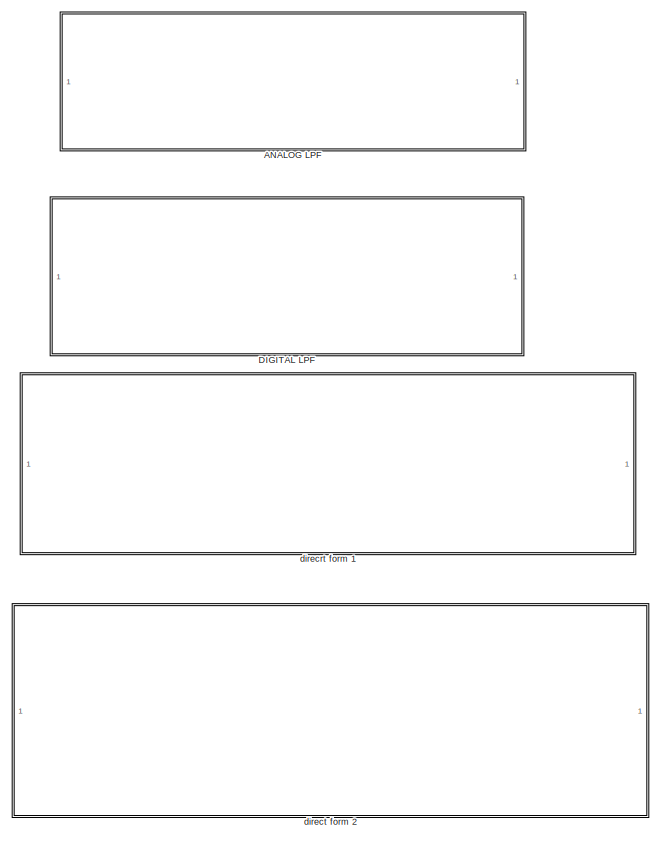
[diagram: root canvas - part 1/6, top center region]
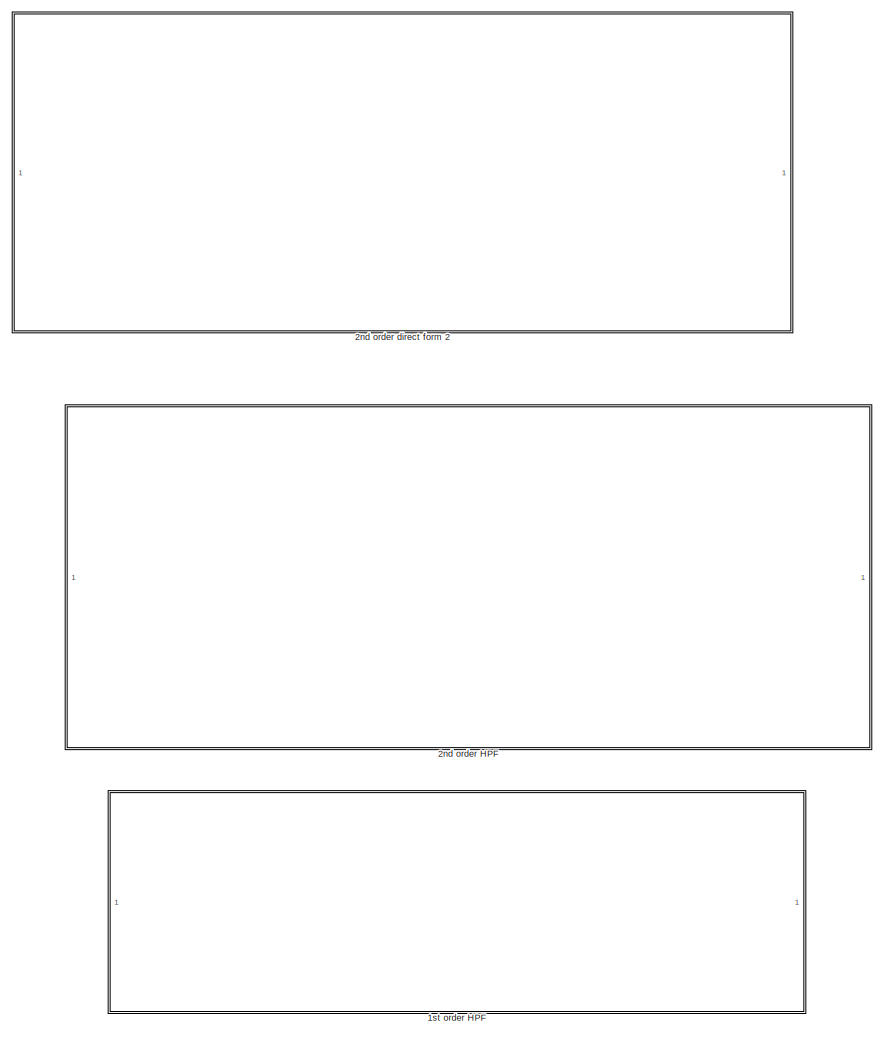
[diagram: root canvas - part 2/6, top center region]
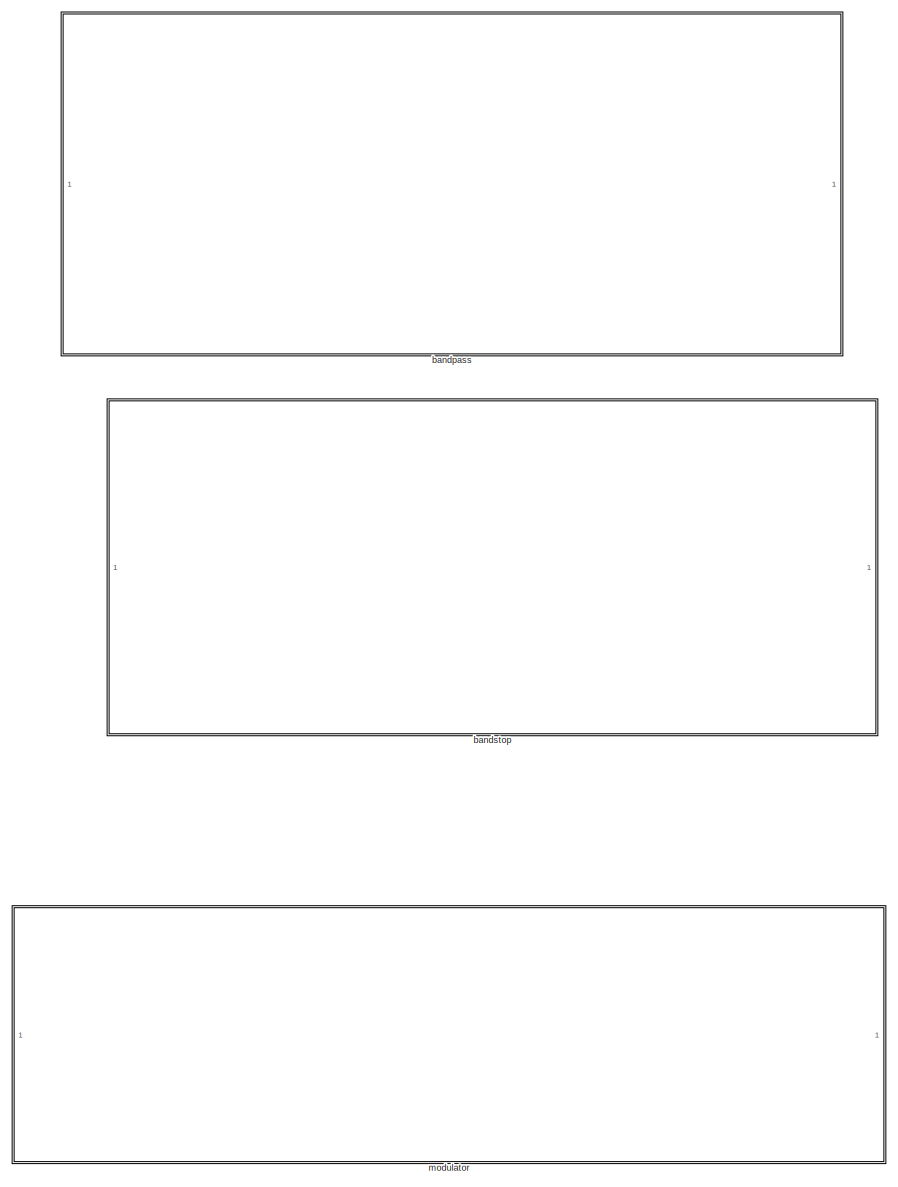
[diagram: root canvas - part 3/6, central region]
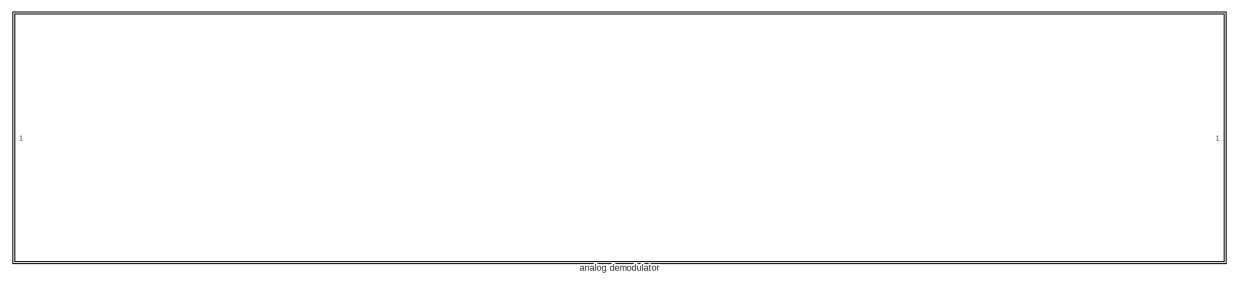
[diagram: root canvas - part 4/6, bottom center region]
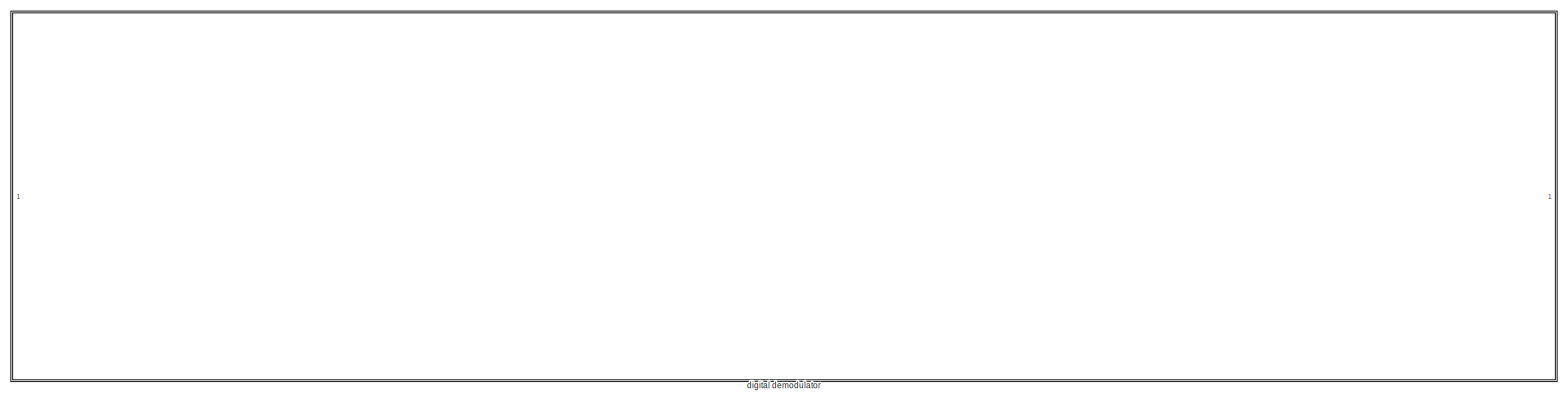
[diagram: root canvas - part 5/6, bottom center region]
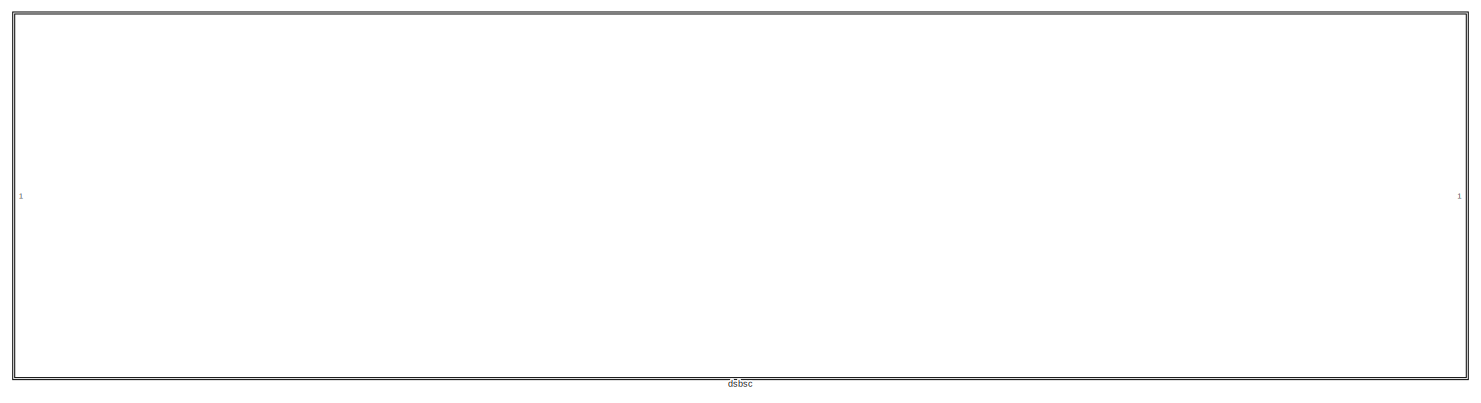
[diagram: root canvas - part 6/6, bottom left region]
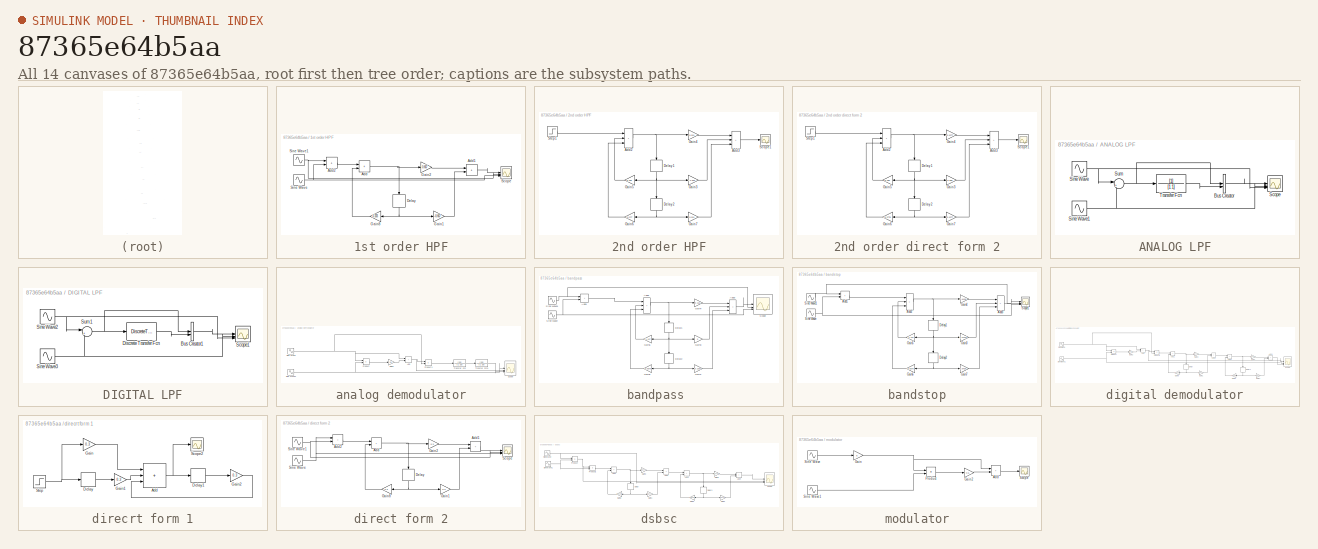
[diagram: thumbnail index - all 14 canvases of the model, root first then tree order]
MODEL slx_87365e64b5aa
KIND model
CONFIG AbsTol = auto
CONFIG EnableMultiTasking = off
CONFIG FixedStep = auto
CONFIG MaxStep = auto
CONFIG MinStep = auto
CONFIG RelTol = 1e-3
CONFIG SampleTimeConstraint = Unconstrained
CONFIG SolverName = VariableStepAuto
CONFIG StartTime = 0.0
CONFIG StopTime = 10.0
BLOCK [SubSystem] 1st order HPF
BLOCK [Sum] 1st order HPF/Add
  IconShape = rectangular
BLOCK [Sum] 1st order HPF/Add1
  IconShape = rectangular
BLOCK [Sum] 1st order HPF/Add2
  IconShape = rectangular
BLOCK [Delay] 1st order HPF/Delay
  DelayLength = 1
  InitialCondition = 0
  InputPortMap = u0
  NameLocation = left
BLOCK [Gain] 1st order HPF/Gain1
  Gain = -0.667
BLOCK [Gain] 1st order HPF/Gain2
  Gain = 0.667
BLOCK [Gain] 1st order HPF/Gain8
  Gain = 0.333
  NameLocation = top
BLOCK [Scope] 1st order HPF/Scope
  Floating = off
  NumInputPorts = 3
  ScopeSpecificationString = Simulink.scopes.TimeScopeBlockCfg('CurrentConfiguration', extmgr.ConfigurationSet(extmgr.Configuration('Core','General UI',true),extmgr.Configuration('Core','Source UI',true),extmgr.Configuration('Sources','WiredSimulink',true,'DataLoggingVariableName','ScopeData5'),extmgr.Configuration('Visuals','Time Domain',true,'SerializedDisplays',{struct('MinYLimReal','-1.07939','MaxYLimReal','1.33461','YLab...<+3016ch>
BLOCK [Sin] 1st order HPF/Sine Wave
  Frequency = 50
  SampleTime = 0
BLOCK [Sin] 1st order HPF/Sine Wave1
  Frequency = 5
  SampleTime = 0
BLOCK [SubSystem] 2nd order HPF
BLOCK [Sum] 2nd order HPF/Add2
  IconShape = rectangular
  Inputs = +++
BLOCK [Sum] 2nd order HPF/Add3
  IconShape = rectangular
  Inputs = +++
BLOCK [Delay] 2nd order HPF/Delay1
  DelayLength = 1
  InitialCondition = 0
  InputPortMap = u0
  NameLocation = left
BLOCK [Delay] 2nd order HPF/Delay2
  DelayLength = 1
  InitialCondition = 0
  InputPortMap = u0
  NameLocation = left
BLOCK [Gain] 2nd order HPF/Gain3
  Gain = -1.022
BLOCK [Gain] 2nd order HPF/Gain4
  Gain = 0.511
BLOCK [Gain] 2nd order HPF/Gain5
  Gain = 0.766
  NameLocation = top
BLOCK [Gain] 2nd order HPF/Gain6
  Gain = -0.277
  NameLocation = top
BLOCK [Gain] 2nd order HPF/Gain7
  Gain = 0.511
BLOCK [Scope] 2nd order HPF/Scope1
  Floating = off
  NumInputPorts = 1
  ScopeSpecificationString = Simulink.scopes.TimeScopeBlockCfg('CurrentConfiguration', extmgr.ConfigurationSet(extmgr.Configuration('Core','General UI',true),extmgr.Configuration('Core','Source UI',true),extmgr.Configuration('Sources','WiredSimulink',true,'DataLoggingVariableName','ScopeData4'),extmgr.Configuration('Visuals','Time Domain',true,'SerializedDisplays',{struct('MinYLimReal','-0.32616','MaxYLimReal','0.60402','YLab...<+1452ch>
BLOCK [Step] 2nd order HPF/Step1
  SampleTime = 0
BLOCK [SubSystem] 2nd order direct form 2
BLOCK [Sum] 2nd order direct form 2/Add2
  IconShape = rectangular
  Inputs = +++
BLOCK [Sum] 2nd order direct form 2/Add3
  IconShape = rectangular
  Inputs = +++
BLOCK [Delay] 2nd order direct form 2/Delay1
  DelayLength = 1
  InitialCondition = 0
  InputPortMap = u0
  NameLocation = left
BLOCK [Delay] 2nd order direct form 2/Delay2
  DelayLength = 1
  InitialCondition = 0
  InputPortMap = u0
  NameLocation = left
BLOCK [Gain] 2nd order direct form 2/Gain3
  Gain = 0.255
BLOCK [Gain] 2nd order direct form 2/Gain4
  Gain = 0.1277
BLOCK [Gain] 2nd order direct form 2/Gain5
  Gain = 0.766
  NameLocation = top
BLOCK [Gain] 2nd order direct form 2/Gain6
  Gain = -0.2775
  NameLocation = top
BLOCK [Gain] 2nd order direct form 2/Gain7
  Gain = 0.1277
BLOCK [Scope] 2nd order direct form 2/Scope1
  Floating = off
  NumInputPorts = 1
  ScopeSpecificationString = Simulink.scopes.TimeScopeBlockCfg('CurrentConfiguration', extmgr.ConfigurationSet(extmgr.Configuration('Core','General UI',true),extmgr.Configuration('Core','Source UI',true),extmgr.Configuration('Sources','WiredSimulink',true,'DataLoggingVariableName','ScopeData3'),extmgr.Configuration('Visuals','Time Domain',true,'SerializedDisplays',{struct('MinYLimReal','-0.13249','MaxYLimReal','1.19243','YLab...<+1452ch>
BLOCK [Step] 2nd order direct form 2/Step1
  SampleTime = 0
BLOCK [SubSystem] ANALOG LPF
BLOCK [BusCreator] ANALOG LPF/Bus Creator
  DisplayOption = bar
  InheritFromInputs = on
  Inputs = 2
BLOCK [Scope] ANALOG LPF/Scope
  Floating = off
  NumInputPorts = 3
  ScopeSpecificationString = Simulink.scopes.TimeScopeBlockCfg('CurrentConfiguration', extmgr.ConfigurationSet(extmgr.Configuration('Core','General UI',true),extmgr.Configuration('Core','Source UI',true),extmgr.Configuration('Sources','WiredSimulink',true),extmgr.Configuration('Visuals','Time Domain',true,'SerializedDisplays',{struct('MinYLimReal','-2.48364','MaxYLimReal','2.48349','YLabelReal','','MinYLimMag','0.00000','MaxY...<+2987ch>
BLOCK [Sin] ANALOG LPF/Sine Wave
  SampleTime = 0
BLOCK [Sin] ANALOG LPF/Sine Wave1
  Frequency = 10
  SampleTime = 0
BLOCK [Sum] ANALOG LPF/Sum
  Inputs = |++
BLOCK [TransferFcn] ANALOG LPF/Transfer Fcn
  Denominator = [1 1]
BLOCK [SubSystem] DIGITAL LPF
BLOCK [BusCreator] DIGITAL LPF/Bus Creator1
  DisplayOption = bar
  InheritFromInputs = on
  Inputs = 2
BLOCK [DiscreteTransferFcn] DIGITAL LPF/Discrete Transfer Fcn
  Denominator = [1 -0.9078]
  InputPortMap = u0
  Numerator = [0.0476 0.0476]
BLOCK [Scope] DIGITAL LPF/Scope1
  Floating = off
  NumInputPorts = 3
  ScopeSpecificationString = Simulink.scopes.TimeScopeBlockCfg('CurrentConfiguration', extmgr.ConfigurationSet(extmgr.Configuration('Core','General UI',true),extmgr.Configuration('Core','Source UI',true),extmgr.Configuration('Sources','WiredSimulink',true,'DataLoggingVariableName','ScopeData1'),extmgr.Configuration('Visuals','Time Domain',true,'SerializedDisplays',{struct('MinYLimReal','-2.25862','MaxYLimReal','2.44658','YLab...<+3040ch>
BLOCK [Sin] DIGITAL LPF/Sine Wave2
  SampleTime = 0
BLOCK [Sin] DIGITAL LPF/Sine Wave3
  Frequency = 10
  SampleTime = 0
BLOCK [Sum] DIGITAL LPF/Sum1
  Inputs = |++
BLOCK [SubSystem] analog demodulator
BLOCK [Sum] analog demodulator/Add
  IconShape = rectangular
BLOCK [Gain] analog demodulator/Gain2
  Gain = 0.5
BLOCK [Product] analog demodulator/Product
BLOCK [Product] analog demodulator/Product1
BLOCK [Scope] analog demodulator/Scope
  Floating = off
  NumInputPorts = 3
  ScopeSpecificationString = Simulink.scopes.TimeScopeBlockCfg('CurrentConfiguration', extmgr.ConfigurationSet(extmgr.Configuration('Core','General UI',true),extmgr.Configuration('Core','Source UI',true),extmgr.Configuration('Sources','WiredSimulink',true,'DataLoggingVariableName','ScopeData1'),extmgr.Configuration('Visuals','Time Domain',true,'SerializedDisplays',{struct('MinYLimReal','-1.24999','MaxYLimReal','1.25','YLabelR...<+3013ch>
BLOCK [Sin] analog demodulator/Sine Wave
  Amplitude = 5
  Frequency = 100
  SampleTime = 0
BLOCK [Sin] analog demodulator/Sine Wave1
  SampleTime = 0
BLOCK [TransferFcn] analog demodulator/Transfer Fcn
  Denominator = [1 20]
  Numerator = [20]
BLOCK [TransferFcn] analog demodulator/Transfer Fcn1
  Denominator = [1 20]
  Numerator = [20]
BLOCK [SubSystem] bandpass 
BLOCK [Sum] bandpass /Add1
  IconShape = rectangular
BLOCK [Sum] bandpass /Add2
  IconShape = rectangular
  Inputs = +++
BLOCK [Sum] bandpass /Add3
  IconShape = rectangular
  Inputs = +++
BLOCK [Delay] bandpass /Delay1
  DelayLength = 1
  InitialCondition = 0
  InputPortMap = u0
  NameLocation = left
BLOCK [Delay] bandpass /Delay2
  DelayLength = 1
  InitialCondition = 0
  InputPortMap = u0
  NameLocation = left
BLOCK [Gain] bandpass /Gain3
  Gain = 0
BLOCK [Gain] bandpass /Gain4
  Gain = 0.156
BLOCK [Gain] bandpass /Gain5
  Gain = -1.437
  NameLocation = top
BLOCK [Gain] bandpass /Gain6
  Gain = -0.6875
  NameLocation = top
BLOCK [Gain] bandpass /Gain7
  Gain = -0.1562
BLOCK [Scope] bandpass /Scope
  Floating = off
  NumInputPorts = 3
  ScopeSpecificationString = Simulink.scopes.TimeScopeBlockCfg('CurrentConfiguration', extmgr.ConfigurationSet(extmgr.Configuration('Core','General UI',true),extmgr.Configuration('Core','Source UI',true),extmgr.Configuration('Sources','WiredSimulink',true,'DataLoggingVariableName','ScopeData1'),extmgr.Configuration('Visuals','Time Domain',true,'SerializedDisplays',{struct('MinYLimReal','-0.1839','MaxYLimReal','0.29717','YLabe...<+2982ch>
BLOCK [Sin] bandpass /Sine Wave
  Frequency = 50
  SampleTime = 0
BLOCK [Sin] bandpass /Sine Wave1
  Frequency = 5
  SampleTime = 0
BLOCK [SubSystem] bandstop
BLOCK [Sum] bandstop/Add1
  IconShape = rectangular
BLOCK [Sum] bandstop/Add2
  IconShape = rectangular
  Inputs = +++
BLOCK [Sum] bandstop/Add3
  IconShape = rectangular
  Inputs = +++
BLOCK [Delay] bandstop/Delay1
  DelayLength = 1
  InitialCondition = 0
  InputPortMap = u0
  NameLocation = left
BLOCK [Delay] bandstop/Delay2
  DelayLength = 1
  InitialCondition = 0
  InputPortMap = u0
  NameLocation = left
BLOCK [Gain] bandstop/Gain3
  Gain = 1.41375
BLOCK [Gain] bandstop/Gain4
  Gain = 0.8438
BLOCK [Gain] bandstop/Gain5
  Gain = -1.437
  NameLocation = top
BLOCK [Gain] bandstop/Gain6
  Gain = -0.6875
  NameLocation = top
BLOCK [Gain] bandstop/Gain7
  Gain = 0.8438
BLOCK [Scope] bandstop/Scope1
  Floating = off
  NumInputPorts = 3
  ScopeSpecificationString = Simulink.scopes.TimeScopeBlockCfg('CurrentConfiguration', extmgr.ConfigurationSet(extmgr.Configuration('Core','General UI',true),extmgr.Configuration('Core','Source UI',true),extmgr.Configuration('Sources','WiredSimulink',true,'DataLoggingVariableName','ScopeData7'),extmgr.Configuration('Visuals','Time Domain',true,'SerializedDisplays',{struct('MinYLimReal','-2.43846','MaxYLimReal','2.4271','YLabe...<+3011ch>
BLOCK [Sin] bandstop/Sine Wave
  Frequency = 50
  SampleTime = 0
BLOCK [Sin] bandstop/Sine Wave1
  Frequency = 5
  SampleTime = 0
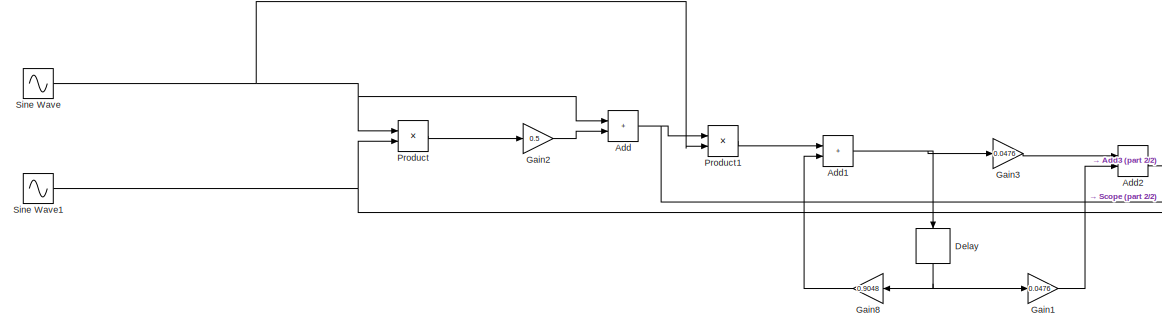
[diagram: digital demodulator - part 1/2, center side, full height]
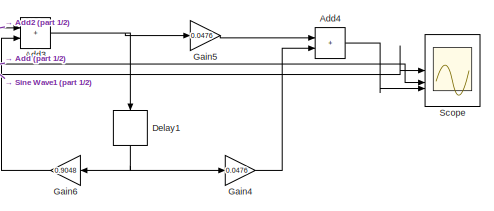
[diagram: digital demodulator - part 2/2, bottom right region]
BLOCK [SubSystem] digital demodulator
BLOCK [Sum] digital demodulator/Add
  IconShape = rectangular
BLOCK [Sum] digital demodulator/Add1
  IconShape = rectangular
BLOCK [Sum] digital demodulator/Add2
  IconShape = rectangular
BLOCK [Sum] digital demodulator/Add3
  IconShape = rectangular
BLOCK [Sum] digital demodulator/Add4
  IconShape = rectangular
BLOCK [Delay] digital demodulator/Delay
  DelayLength = 1
  InitialCondition = 0
  InputPortMap = u0
  NameLocation = left
BLOCK [Delay] digital demodulator/Delay1
  DelayLength = 1
  InitialCondition = 0
  InputPortMap = u0
  NameLocation = left
BLOCK [Gain] digital demodulator/Gain1
  Gain = 0.0476
BLOCK [Gain] digital demodulator/Gain2
  Gain = 0.5
BLOCK [Gain] digital demodulator/Gain3
  Gain = 0.0476
BLOCK [Gain] digital demodulator/Gain4
  Gain = 0.0476
BLOCK [Gain] digital demodulator/Gain5
  Gain = 0.0476
BLOCK [Gain] digital demodulator/Gain6
  Gain = 0.9048
  NameLocation = top
BLOCK [Gain] digital demodulator/Gain8
  Gain = 0.9048
  NameLocation = top
BLOCK [Product] digital demodulator/Product
BLOCK [Product] digital demodulator/Product1
BLOCK [Scope] digital demodulator/Scope
  Floating = off
  NumInputPorts = 3
  ScopeSpecificationString = Simulink.scopes.TimeScopeBlockCfg('CurrentConfiguration', extmgr.ConfigurationSet(extmgr.Configuration('Core','General UI',true),extmgr.Configuration('Core','Source UI',true),extmgr.Configuration('Sources','WiredSimulink',true,'DataLoggingVariableName','ScopeData2'),extmgr.Configuration('Visuals','Time Domain',true,'SerializedDisplays',{struct('MinYLimReal','-1.24999','MaxYLimReal','1.25','YLabelR...<+3004ch>
BLOCK [Sin] digital demodulator/Sine Wave
  Amplitude = 5
  Frequency = 100
  SampleTime = 0
BLOCK [Sin] digital demodulator/Sine Wave1
  SampleTime = 0
BLOCK [SubSystem] direcrt form 1
BLOCK [Sum] direcrt form 1/Add
  IconShape = rectangular
  Inputs = +++
BLOCK [Delay] direcrt form 1/Delay
  DelayLength = 1
  InitialCondition = 0
  InputPortMap = u0
BLOCK [Delay] direcrt form 1/Delay1
  DelayLength = 1
  InitialCondition = 0
  InputPortMap = u0
BLOCK [Gain] direcrt form 1/Gain
  Gain = 0.3
BLOCK [Gain] direcrt form 1/Gain1
  Gain = 0.3
BLOCK [Gain] direcrt form 1/Gain2
  Gain = 0.3
BLOCK [Scope] direcrt form 1/Scope2
  Floating = off
  NumInputPorts = 1
  ScopeSpecificationString = Simulink.scopes.TimeScopeBlockCfg('CurrentConfiguration', extmgr.ConfigurationSet(extmgr.Configuration('Core','General UI',true),extmgr.Configuration('Core','Source UI',true),extmgr.Configuration('Sources','WiredSimulink',true,'DataLoggingVariableName','ScopeData1'),extmgr.Configuration('Visuals','Time Domain',true,'SerializedDisplays',{struct('MinYLimReal','-0.10714','MaxYLimReal','0.96429','YLab...<+1451ch>
BLOCK [Step] direcrt form 1/Step
  SampleTime = 0
BLOCK [SubSystem] direct form 2
BLOCK [Sum] direct form 2/Add
  IconShape = rectangular
BLOCK [Sum] direct form 2/Add1
  IconShape = rectangular
BLOCK [Sum] direct form 2/Add2
  IconShape = rectangular
BLOCK [Delay] direct form 2/Delay
  DelayLength = 1
  InitialCondition = 0
  InputPortMap = u0
  NameLocation = left
BLOCK [Gain] direct form 2/Gain1
  Gain = 0.3
BLOCK [Gain] direct form 2/Gain2
  Gain = 0.3
BLOCK [Gain] direct form 2/Gain8
  Gain = 0.3
  NameLocation = top
BLOCK [Scope] direct form 2/Scope
  Floating = off
  NumInputPorts = 3
  ScopeSpecificationString = Simulink.scopes.TimeScopeBlockCfg('CurrentConfiguration', extmgr.ConfigurationSet(extmgr.Configuration('Core','General UI',true),extmgr.Configuration('Core','Source UI',true),extmgr.Configuration('Sources','WiredSimulink',true,'DataLoggingVariableName','ScopeData2'),extmgr.Configuration('Visuals','Time Domain',true,'SerializedDisplays',{struct('MinYLimReal','-1.78552','MaxYLimReal','1.78164','YLab...<+3016ch>
BLOCK [Sin] direct form 2/Sine Wave
  Frequency = 50
  SampleTime = 0
BLOCK [Sin] direct form 2/Sine Wave1
  Frequency = 5
  SampleTime = 0
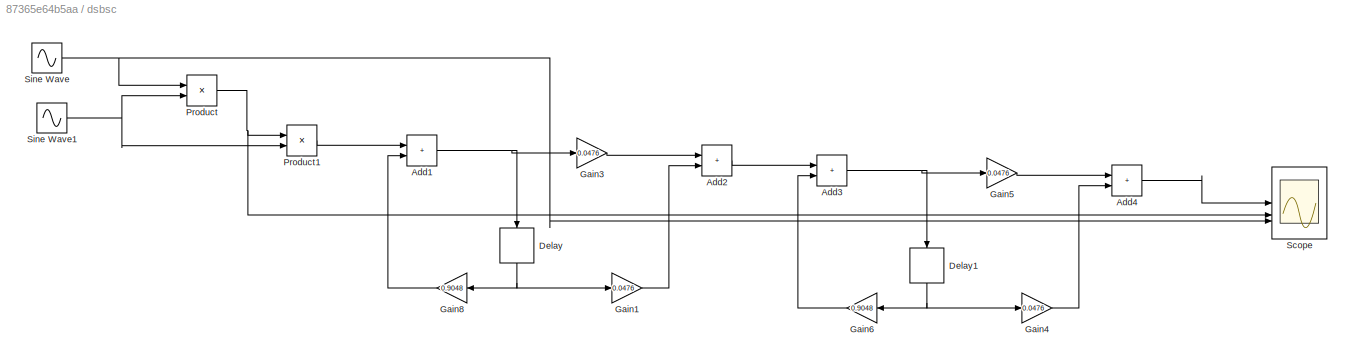
BLOCK [SubSystem] dsbsc
BLOCK [Sum] dsbsc/Add1
  IconShape = rectangular
BLOCK [Sum] dsbsc/Add2
  IconShape = rectangular
BLOCK [Sum] dsbsc/Add3
  IconShape = rectangular
BLOCK [Sum] dsbsc/Add4
  IconShape = rectangular
BLOCK [Delay] dsbsc/Delay
  DelayLength = 1
  InitialCondition = 0
  InputPortMap = u0
  NameLocation = left
BLOCK [Delay] dsbsc/Delay1
  DelayLength = 1
  InitialCondition = 0
  InputPortMap = u0
  NameLocation = left
BLOCK [Gain] dsbsc/Gain1
  Gain = 0.0476
BLOCK [Gain] dsbsc/Gain3
  Gain = 0.0476
BLOCK [Gain] dsbsc/Gain4
  Gain = 0.0476
BLOCK [Gain] dsbsc/Gain5
  Gain = 0.0476
BLOCK [Gain] dsbsc/Gain6
  Gain = 0.9048
  NameLocation = top
BLOCK [Gain] dsbsc/Gain8
  Gain = 0.9048
  NameLocation = top
BLOCK [Product] dsbsc/Product
BLOCK [Product] dsbsc/Product1
BLOCK [Scope] dsbsc/Scope
  Floating = off
  NumInputPorts = 3
  ScopeSpecificationString = Simulink.scopes.TimeScopeBlockCfg('CurrentConfiguration', extmgr.ConfigurationSet(extmgr.Configuration('Core','General UI',true),extmgr.Configuration('Core','Source UI',true),extmgr.Configuration('Sources','WiredSimulink',true,'DataLoggingVariableName','ScopeData3'),extmgr.Configuration('Visuals','Time Domain',true,'SerializedDisplays',{struct('MinYLimReal','-0.5995','MaxYLimReal','0.60125','YLabe...<+2972ch>
BLOCK [Sin] dsbsc/Sine Wave
  SampleTime = 0
BLOCK [Sin] dsbsc/Sine Wave1
  Frequency = 100
  SampleTime = 0
BLOCK [SubSystem] modulator
BLOCK [Sum] modulator/Add
  IconShape = rectangular
BLOCK [Gain] modulator/Gain
  Gain = 5
BLOCK [Gain] modulator/Gain2
  Gain = 0.5
BLOCK [Product] modulator/Product
BLOCK [Scope] modulator/Scope
  Floating = off
  NumInputPorts = 1
  ScopeSpecificationString = Simulink.scopes.TimeScopeBlockCfg('CurrentConfiguration', extmgr.ConfigurationSet(extmgr.Configuration('Core','General UI',true),extmgr.Configuration('Core','Source UI',true),extmgr.Configuration('Sources','WiredSimulink',true,'DataLoggingVariableName','ScopeData2'),extmgr.Configuration('Visuals','Time Domain',true,'SerializedDisplays',{struct('MinYLimReal','-9.01717','MaxYLimReal','8.26208','YLab...<+1480ch>
BLOCK [Sin] modulator/Sine Wave
  Frequency = 100
  SampleTime = 0
BLOCK [Sin] modulator/Sine Wave1
  SampleTime = 0
LINE 1st order HPF/Add1:1 -> 1st order HPF/Scope:1
LINE 1st order HPF/Add2:1 -> 1st order HPF/Add:1
NET 1st order HPF/Add:1 -> 1st order HPF/Delay:1, 1st order HPF/Gain2:1
NET 1st order HPF/Delay:1 -> 1st order HPF/Gain1:1, 1st order HPF/Gain8:1
LINE 1st order HPF/Gain1:1 -> 1st order HPF/Add1:2
LINE 1st order HPF/Gain2:1 -> 1st order HPF/Add1:1
LINE 1st order HPF/Gain8:1 -> 1st order HPF/Add:2
NET 1st order HPF/Sine Wave1:1 -> 1st order HPF/Add2:1, 1st order HPF/Scope:2
NET 1st order HPF/Sine Wave:1 -> 1st order HPF/Add2:2, 1st order HPF/Scope:3
NET 2nd order HPF/Add2:1 -> 2nd order HPF/Delay1:1, 2nd order HPF/Gain4:1
LINE 2nd order HPF/Add3:1 -> 2nd order HPF/Scope1:1
NET 2nd order HPF/Delay1:1 -> 2nd order HPF/Delay2:1, 2nd order HPF/Gain3:1, 2nd order HPF/Gain5:1
NET 2nd order HPF/Delay2:1 -> 2nd order HPF/Gain6:1, 2nd order HPF/Gain7:1
LINE 2nd order HPF/Gain3:1 -> 2nd order HPF/Add3:2
LINE 2nd order HPF/Gain4:1 -> 2nd order HPF/Add3:1
LINE 2nd order HPF/Gain5:1 -> 2nd order HPF/Add2:2
LINE 2nd order HPF/Gain6:1 -> 2nd order HPF/Add2:3
LINE 2nd order HPF/Gain7:1 -> 2nd order HPF/Add3:3
LINE 2nd order HPF/Step1:1 -> 2nd order HPF/Add2:1
NET 2nd order direct form 2/Add2:1 -> 2nd order direct form 2/Delay1:1, 2nd order direct form 2/Gain4:1
LINE 2nd order direct form 2/Add3:1 -> 2nd order direct form 2/Scope1:1
NET 2nd order direct form 2/Delay1:1 -> 2nd order direct form 2/Delay2:1, 2nd order direct form 2/Gain3:1, 2nd order direct form 2/Gain5:1
NET 2nd order direct form 2/Delay2:1 -> 2nd order direct form 2/Gain6:1, 2nd order direct form 2/Gain7:1
LINE 2nd order direct form 2/Gain3:1 -> 2nd order direct form 2/Add3:2
LINE 2nd order direct form 2/Gain4:1 -> 2nd order direct form 2/Add3:1
LINE 2nd order direct form 2/Gain5:1 -> 2nd order direct form 2/Add2:2
LINE 2nd order direct form 2/Gain6:1 -> 2nd order direct form 2/Add2:3
LINE 2nd order direct form 2/Gain7:1 -> 2nd order direct form 2/Add3:3
LINE 2nd order direct form 2/Step1:1 -> 2nd order direct form 2/Add2:1
LINE ANALOG LPF/Bus Creator:1 -> ANALOG LPF/Scope:1
NET ANALOG LPF/Sine Wave1:1 -> ANALOG LPF/Scope:2, ANALOG LPF/Sum:2
NET ANALOG LPF/Sine Wave:1 -> ANALOG LPF/Scope:3, ANALOG LPF/Sum:1
NET ANALOG LPF/Sum:1 -> ANALOG LPF/Bus Creator:1, ANALOG LPF/Transfer Fcn:1
LINE ANALOG LPF/Transfer Fcn:1 -> ANALOG LPF/Bus Creator:2
LINE DIGITAL LPF/Bus Creator1:1 -> DIGITAL LPF/Scope1:1
LINE DIGITAL LPF/Discrete Transfer Fcn:1 -> DIGITAL LPF/Bus Creator1:2
NET DIGITAL LPF/Sine Wave2:1 -> DIGITAL LPF/Scope1:3, DIGITAL LPF/Sum1:1
NET DIGITAL LPF/Sine Wave3:1 -> DIGITAL LPF/Scope1:2, DIGITAL LPF/Sum1:2
NET DIGITAL LPF/Sum1:1 -> DIGITAL LPF/Bus Creator1:1, DIGITAL LPF/Discrete Transfer Fcn:1
NET analog demodulator/Add:1 -> analog demodulator/Product1:1, analog demodulator/Scope:2
LINE analog demodulator/Gain2:1 -> analog demodulator/Add:2
LINE analog demodulator/Product1:1 -> analog demodulator/Transfer Fcn:1
LINE analog demodulator/Product:1 -> analog demodulator/Gain2:1
NET analog demodulator/Sine Wave1:1 -> analog demodulator/Product:2, analog demodulator/Scope:1
NET analog demodulator/Sine Wave:1 -> analog demodulator/Add:1, analog demodulator/Product1:2, analog demodulator/Product:1
LINE analog demodulator/Transfer Fcn1:1 -> analog demodulator/Scope:3
LINE analog demodulator/Transfer Fcn:1 -> analog demodulator/Transfer Fcn1:1
LINE bandpass /Add1:1 -> bandpass /Add2:1
NET bandpass /Add2:1 -> bandpass /Delay1:1, bandpass /Gain4:1
LINE bandpass /Add3:1 -> bandpass /Scope:1
NET bandpass /Delay1:1 -> bandpass /Delay2:1, bandpass /Gain3:1, bandpass /Gain5:1
NET bandpass /Delay2:1 -> bandpass /Gain6:1, bandpass /Gain7:1
LINE bandpass /Gain3:1 -> bandpass /Add3:2
LINE bandpass /Gain4:1 -> bandpass /Add3:1
LINE bandpass /Gain5:1 -> bandpass /Add2:2
LINE bandpass /Gain6:1 -> bandpass /Add2:3
LINE bandpass /Gain7:1 -> bandpass /Add3:3
NET bandpass /Sine Wave1:1 -> bandpass /Add1:1, bandpass /Scope:2
NET bandpass /Sine Wave:1 -> bandpass /Add1:2, bandpass /Scope:3
LINE bandstop/Add1:1 -> bandstop/Add2:1
NET bandstop/Add2:1 -> bandstop/Delay1:1, bandstop/Gain4:1
LINE bandstop/Add3:1 -> bandstop/Scope1:1
NET bandstop/Delay1:1 -> bandstop/Delay2:1, bandstop/Gain3:1, bandstop/Gain5:1
NET bandstop/Delay2:1 -> bandstop/Gain6:1, bandstop/Gain7:1
LINE bandstop/Gain3:1 -> bandstop/Add3:2
LINE bandstop/Gain4:1 -> bandstop/Add3:1
LINE bandstop/Gain5:1 -> bandstop/Add2:2
LINE bandstop/Gain6:1 -> bandstop/Add2:3
LINE bandstop/Gain7:1 -> bandstop/Add3:3
NET bandstop/Sine Wave1:1 -> bandstop/Add1:1, bandstop/Scope1:2
NET bandstop/Sine Wave:1 -> bandstop/Add1:2, bandstop/Scope1:3
NET digital demodulator/Add1:1 -> digital demodulator/Delay:1, digital demodulator/Gain3:1
LINE digital demodulator/Add2:1 -> digital demodulator/Add3:1
NET digital demodulator/Add3:1 -> digital demodulator/Delay1:1, digital demodulator/Gain5:1
LINE digital demodulator/Add4:1 -> digital demodulator/Scope:3
NET digital demodulator/Add:1 -> digital demodulator/Product1:1, digital demodulator/Scope:2
NET digital demodulator/Delay1:1 -> digital demodulator/Gain4:1, digital demodulator/Gain6:1
NET digital demodulator/Delay:1 -> digital demodulator/Gain1:1, digital demodulator/Gain8:1
LINE digital demodulator/Gain1:1 -> digital demodulator/Add2:2
LINE digital demodulator/Gain2:1 -> digital demodulator/Add:2
LINE digital demodulator/Gain3:1 -> digital demodulator/Add2:1
LINE digital demodulator/Gain4:1 -> digital demodulator/Add4:2
LINE digital demodulator/Gain5:1 -> digital demodulator/Add4:1
LINE digital demodulator/Gain6:1 -> digital demodulator/Add3:2
LINE digital demodulator/Gain8:1 -> digital demodulator/Add1:2
LINE digital demodulator/Product1:1 -> digital demodulator/Add1:1
LINE digital demodulator/Product:1 -> digital demodulator/Gain2:1
NET digital demodulator/Sine Wave1:1 -> digital demodulator/Product:2, digital demodulator/Scope:1
NET digital demodulator/Sine Wave:1 -> digital demodulator/Add:1, digital demodulator/Product1:2, digital demodulator/Product:1
NET direcrt form 1/Add:1 -> direcrt form 1/Delay1:1, direcrt form 1/Scope2:1
LINE direcrt form 1/Delay1:1 -> direcrt form 1/Gain2:1
LINE direcrt form 1/Delay:1 -> direcrt form 1/Gain1:1
LINE direcrt form 1/Gain1:1 -> direcrt form 1/Add:2
LINE direcrt form 1/Gain2:1 -> direcrt form 1/Add:3
LINE direcrt form 1/Gain:1 -> direcrt form 1/Add:1
NET direcrt form 1/Step:1 -> direcrt form 1/Delay:1, direcrt form 1/Gain:1
LINE direct form 2/Add1:1 -> direct form 2/Scope:1
LINE direct form 2/Add2:1 -> direct form 2/Add:1
NET direct form 2/Add:1 -> direct form 2/Delay:1, direct form 2/Gain2:1
NET direct form 2/Delay:1 -> direct form 2/Gain1:1, direct form 2/Gain8:1
LINE direct form 2/Gain1:1 -> direct form 2/Add1:2
LINE direct form 2/Gain2:1 -> direct form 2/Add1:1
LINE direct form 2/Gain8:1 -> direct form 2/Add:2
NET direct form 2/Sine Wave1:1 -> direct form 2/Add2:2, direct form 2/Scope:2
NET direct form 2/Sine Wave:1 -> direct form 2/Add2:1, direct form 2/Scope:3
NET dsbsc/Add1:1 -> dsbsc/Delay:1, dsbsc/Gain3:1
LINE dsbsc/Add2:1 -> dsbsc/Add3:1
NET dsbsc/Add3:1 -> dsbsc/Delay1:1, dsbsc/Gain5:1
LINE dsbsc/Add4:1 -> dsbsc/Scope:1
NET dsbsc/Delay1:1 -> dsbsc/Gain4:1, dsbsc/Gain6:1
NET dsbsc/Delay:1 -> dsbsc/Gain1:1, dsbsc/Gain8:1
LINE dsbsc/Gain1:1 -> dsbsc/Add2:2
LINE dsbsc/Gain3:1 -> dsbsc/Add2:1
LINE dsbsc/Gain4:1 -> dsbsc/Add4:2
LINE dsbsc/Gain5:1 -> dsbsc/Add4:1
LINE dsbsc/Gain6:1 -> dsbsc/Add3:2
LINE dsbsc/Gain8:1 -> dsbsc/Add1:2
LINE dsbsc/Product1:1 -> dsbsc/Add1:1
NET dsbsc/Product:1 -> dsbsc/Product1:1, dsbsc/Scope:2
NET dsbsc/Sine Wave1:1 -> dsbsc/Product1:2, dsbsc/Product:2
NET dsbsc/Sine Wave:1 -> dsbsc/Product:1, dsbsc/Scope:3
LINE modulator/Add:1 -> modulator/Scope:1
LINE modulator/Gain2:1 -> modulator/Add:2
NET modulator/Gain:1 -> modulator/Add:1, modulator/Product:1
LINE modulator/Product:1 -> modulator/Gain2:1
LINE modulator/Sine Wave1:1 -> modulator/Product:2
LINE modulator/Sine Wave:1 -> modulator/Gain:1
note: NET lines group one-source signal fan-out (src -> all destinations, sorted); 1:1 wires keep LINE
